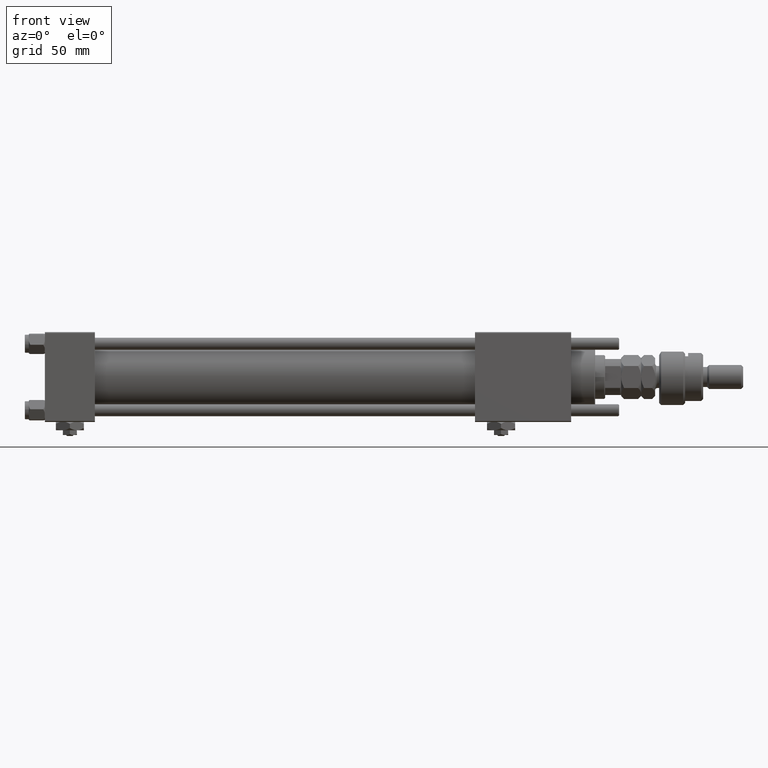
[diagram: clean part render]
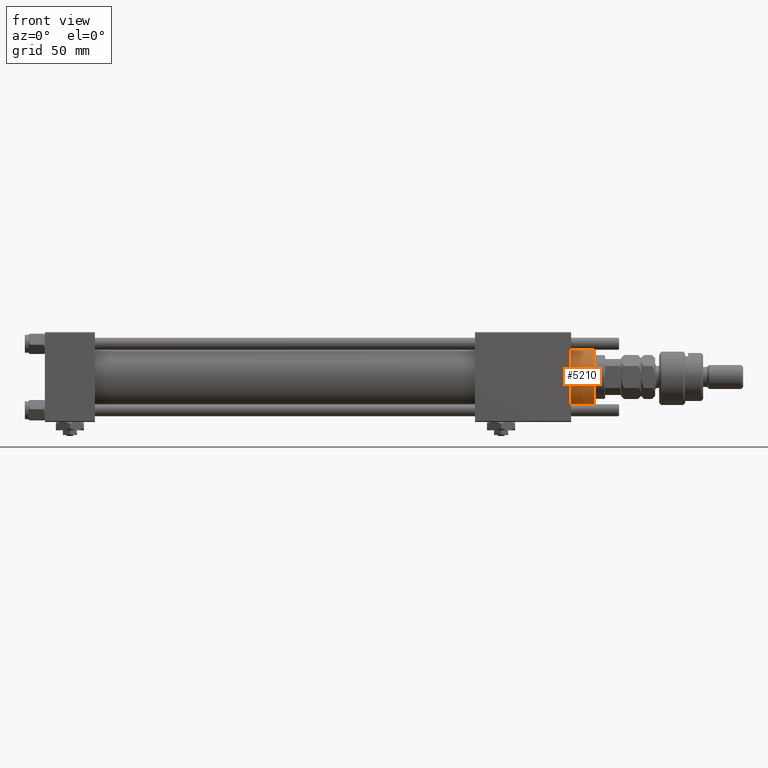
[diagram: same view with one face highlighted and labeled with its STEP entity id]
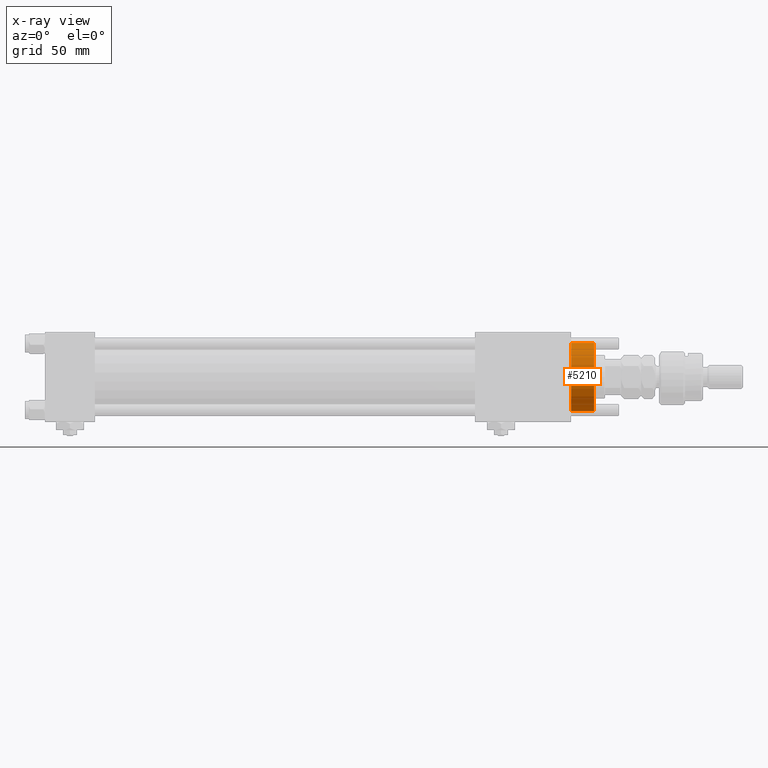
[diagram: x-ray of the same camera — body ghosted, the highlighted face saturated]
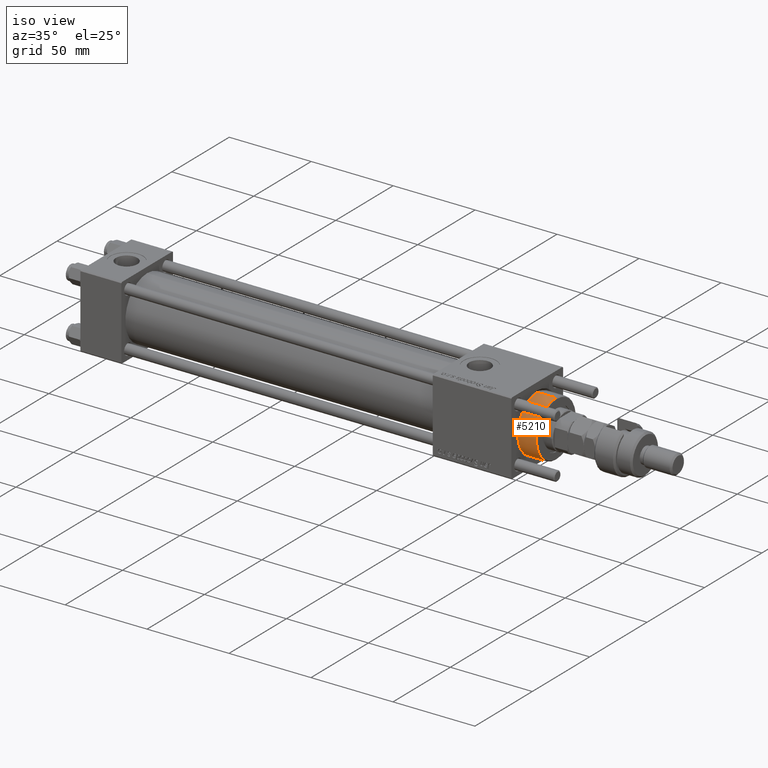
[diagram: same view with one face highlighted and labeled with its STEP entity id]
A machine part, front view. The second image highlights one B-rep face of the part: STEP entity #5210.
The next image is the same camera in x-ray: the body ghosted, the highlighted face saturated — about 0% of this face is hidden behind the body in this view.
A second angle (iso view) of the same face is appended — the face is thin or edge-on in the first view.
In plain terms, the highlighted cylindrical surface (edge-blend (fillet) strip) has radius 17 mm, axis along (-1, -0, 0).
Its self-contained STEP definition (entity closure, byte-faithful):
#2587 = CARTESIAN_POINT ( 'NONE',  ( 0.000000000000000000, 0.000000000000000000, 40.19999999999999574 ) ) ;
#2864 = VECTOR ( 'NONE', #15263, 1000.000000000000000 ) ;
#3685 = VERTEX_POINT ( 'NONE', #54763 ) ;
#5210 = ADVANCED_FACE ( 'NONE', ( #15777 ), #58796, .T. ) ;
#5621 = CARTESIAN_POINT ( 'NONE',  ( -17.00000000000000000, 0.000000000000000000, 40.70000000000000284 ) ) ;
#5906 = CARTESIAN_POINT ( 'NONE',  ( 0.000000000000000000, 0.000000000000000000, 28.69999999999999929 ) ) ;
#6055 = ORIENTED_EDGE ( 'NONE', *, *, #8251, .F. ) ;
#6260 = ORIENTED_EDGE ( 'NONE', *, *, #58688, .T. ) ;
#8251 = EDGE_CURVE ( 'NONE', #15201, #17124, #46489, .T. ) ;
#8343 = EDGE_CURVE ( 'NONE', #48825, #17124, #39722, .T. ) ;
#10472 = DIRECTION ( 'NONE',  ( -0.000000000000000000, -0.000000000000000000, -1.000000000000000000 ) ) ;
#10639 = ORIENTED_EDGE ( 'NONE', *, *, #8343, .T. ) ;
#15201 = VERTEX_POINT ( 'NONE', #24645 ) ;
#15263 = DIRECTION ( 'NONE',  ( -0.000000000000000000, -0.000000000000000000, -1.000000000000000000 ) ) ;
#15777 = FACE_OUTER_BOUND ( 'NONE', #33137, .T. ) ;
#17124 = VERTEX_POINT ( 'NONE', #45156 ) ;
#19343 = DIRECTION ( 'NONE',  ( -0.000000000000000000, -0.000000000000000000, -1.000000000000000000 ) ) ;
#20393 = VECTOR ( 'NONE', #19343, 1000.000000000000000 ) ;
#20596 = EDGE_CURVE ( 'NONE', #3685, #48825, #29009, .T. ) ;
#24645 = CARTESIAN_POINT ( 'NONE',  ( 17.00000000000000000, 2.081899558550500280E-15, 40.19999999999999574 ) ) ;
#24912 = DIRECTION ( 'NONE',  ( 0.000000000000000000, 0.000000000000000000, 1.000000000000000000 ) ) ;
#28478 = CIRCLE ( 'NONE', #55464, 17.00000000000000000 ) ;
#28641 = AXIS2_PLACEMENT_3D ( 'NONE', #53221, #10472, #39485 ) ;
#29009 = LINE ( 'NONE', #5621, #20393 ) ;
#33137 = EDGE_LOOP ( 'NONE', ( #6055, #6260, #33849, #10639 ) ) ;
#33849 = ORIENTED_EDGE ( 'NONE', *, *, #20596, .T. ) ;
#39485 = DIRECTION ( 'NONE',  ( -1.000000000000000000, 0.000000000000000000, 0.000000000000000000 ) ) ;
#39722 = CIRCLE ( 'NONE', #42744, 17.00000000000000000 ) ;
#40031 = DIRECTION ( 'NONE',  ( 1.000000000000000000, 0.000000000000000000, 0.000000000000000000 ) ) ;
#42721 = CARTESIAN_POINT ( 'NONE',  ( 17.00000000000000000, 2.081899558550500280E-15, 40.70000000000000284 ) ) ;
#42744 = AXIS2_PLACEMENT_3D ( 'NONE', #5906, #24912, #57673 ) ;
#45156 = CARTESIAN_POINT ( 'NONE',  ( 17.00000000000000000, 2.081899558550500280E-15, 28.69999999999999929 ) ) ;
#45965 = DIRECTION ( 'NONE',  ( 0.000000000000000000, 0.000000000000000000, -1.000000000000000000 ) ) ;
#46441 = CARTESIAN_POINT ( 'NONE',  ( -17.00000000000000000, 0.000000000000000000, 28.69999999999999929 ) ) ;
#46489 = LINE ( 'NONE', #42721, #2864 ) ;
#48825 = VERTEX_POINT ( 'NONE', #46441 ) ;
#53221 = CARTESIAN_POINT ( 'NONE',  ( 0.000000000000000000, 0.000000000000000000, 40.70000000000000284 ) ) ;
#54763 = CARTESIAN_POINT ( 'NONE',  ( -17.00000000000000000, 0.000000000000000000, 40.19999999999999574 ) ) ;
#55464 = AXIS2_PLACEMENT_3D ( 'NONE', #2587, #45965, #40031 ) ;
#57673 = DIRECTION ( 'NONE',  ( 1.000000000000000000, 0.000000000000000000, 0.000000000000000000 ) ) ;
#58688 = EDGE_CURVE ( 'NONE', #15201, #3685, #28478, .T. ) ;
#58796 = CYLINDRICAL_SURFACE ( 'NONE', #28641, 17.00000000000000000 ) ;